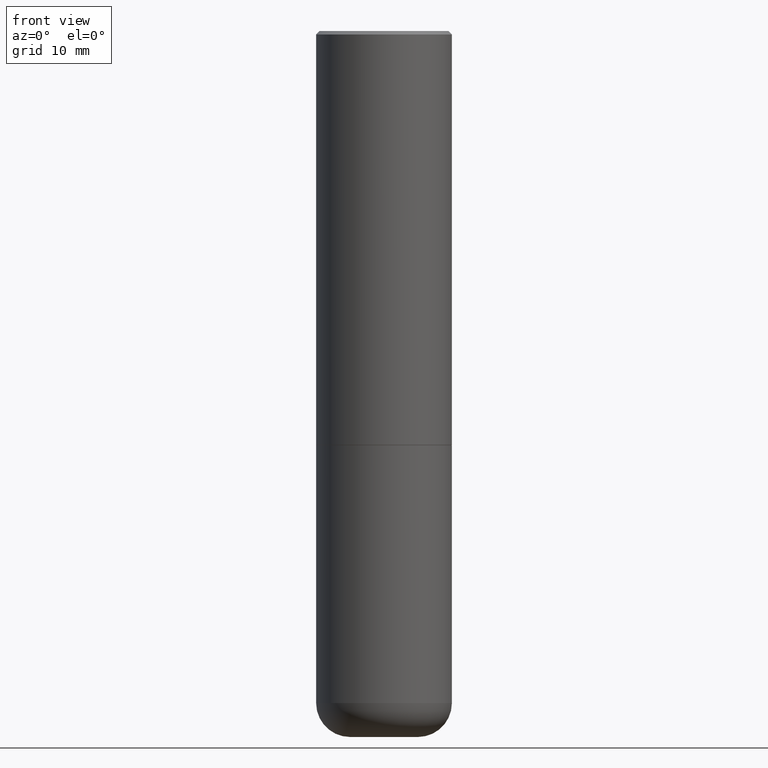
[diagram: clean part render]
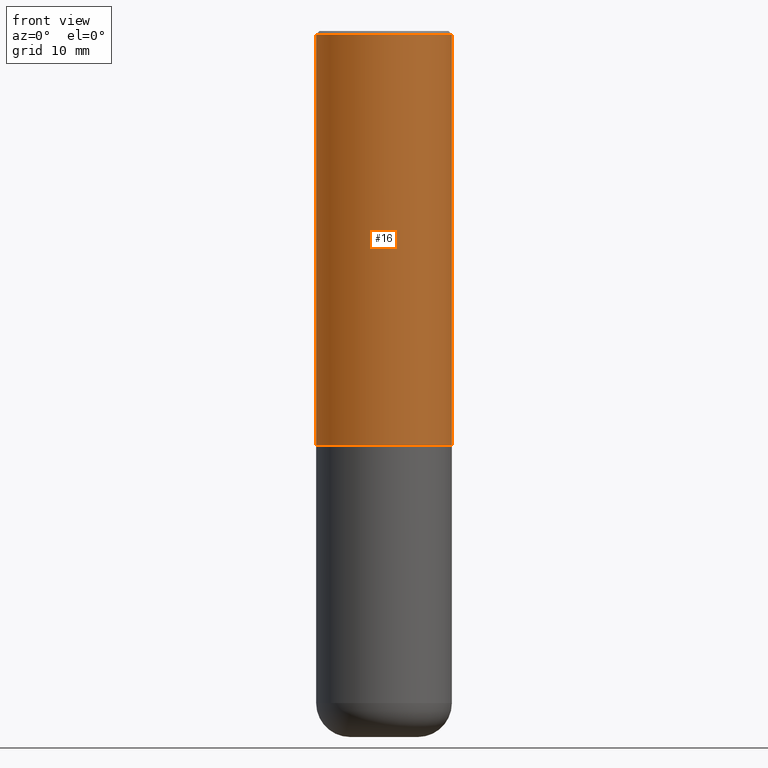
[diagram: same view with one face highlighted and labeled with its STEP entity id]
A machine part, front view. The second image highlights one B-rep face of the part: STEP entity #16.
In plain terms, the highlighted cylindrical surface (partial cylindrical patch) has radius 10 mm, axis along (-0, 0, 1).
Its self-contained STEP definition (entity closure, byte-faithful):
#8 = VECTOR ( 'NONE', #408, 39.37007874015748143 ) ;
#10 = CARTESIAN_POINT ( 'NONE',  ( -0.3937000000000001609, 2.797406750687515575E-15, -1.936584745033357296E-29 ) ) ;
#16 = ADVANCED_FACE ( 'NONE', ( #260 ), #267, .T. ) ;
#61 = CARTESIAN_POINT ( 'NONE',  ( 4.890937612370294178E-31, -6.982962677686321191E-17, -0.02000000000000008715 ) ) ;
#63 = CARTESIAN_POINT ( 'NONE',  ( -0.3937000000000003830, -1.428333113714341032E-15, -2.400600000000000289 ) ) ;
#64 = EDGE_LOOP ( 'NONE', ( #270, #228, #157, #314 ) ) ;
#74 = VERTEX_POINT ( 'NONE', #63 ) ;
#89 = EDGE_CURVE ( 'NONE', #163, #231, #401, .T. ) ;
#91 = DIRECTION ( 'NONE',  ( 1.000000000000000000, -6.982962677686265922E-15, 0.000000000000000000 ) ) ;
#100 = DIRECTION ( 'NONE',  ( 1.000000000000000000, -6.982962677686265922E-15, 0.000000000000000000 ) ) ;
#116 = AXIS2_PLACEMENT_3D ( 'NONE', #61, #158, #100 ) ;
#137 = DIRECTION ( 'NONE',  ( -2.445468806185136597E-29, 3.491481338843145583E-15, 1.000000000000000000 ) ) ;
#140 = DIRECTION ( 'NONE',  ( 1.000000000000000000, -6.982962677686266711E-15, 4.876176775795935793E-29 ) ) ;
#141 = DIRECTION ( 'NONE',  ( -2.445468806185136597E-29, 3.491481338843145583E-15, 1.000000000000000000 ) ) ;
#147 = DIRECTION ( 'NONE',  ( -2.445468806185136877E-29, 3.491481338843145188E-15, 1.000000000000000000 ) ) ;
#151 = CARTESIAN_POINT ( 'NONE',  ( 0.3937000000000001609, -2.749192406205084400E-15, 1.919750796630860732E-29 ) ) ;
#157 = ORIENTED_EDGE ( 'NONE', *, *, #89, .T. ) ;
#158 = DIRECTION ( 'NONE',  ( -2.445468806185136597E-29, 3.491481338843145583E-15, 1.000000000000000000 ) ) ;
#163 = VERTEX_POINT ( 'NONE', #339 ) ;
#182 = VERTEX_POINT ( 'NONE', #266 ) ;
#206 = CIRCLE ( 'NONE', #309, 0.3937000000000002720 ) ;
#212 = CARTESIAN_POINT ( 'NONE',  ( 5.870592416128038746E-29, -8.381650102026855834E-15, -2.400600000000000289 ) ) ;
#228 = ORIENTED_EDGE ( 'NONE', *, *, #313, .T. ) ;
#231 = VERTEX_POINT ( 'NONE', #350 ) ;
#252 = EDGE_CURVE ( 'NONE', #74, #182, #297, .T. ) ;
#260 = FACE_OUTER_BOUND ( 'NONE', #64, .T. ) ;
#266 = CARTESIAN_POINT ( 'NONE',  ( -0.3937000000000000499, 2.679362779428219918E-15, -0.02000000000000008715 ) ) ;
#267 = CYLINDRICAL_SURFACE ( 'NONE', #285, 0.3937000000000001609 ) ;
#270 = ORIENTED_EDGE ( 'NONE', *, *, #252, .F. ) ;
#279 = CIRCLE ( 'NONE', #116, 0.3937000000000000499 ) ;
#285 = AXIS2_PLACEMENT_3D ( 'NONE', #300, #137, #140 ) ;
#297 = LINE ( 'NONE', #10, #405 ) ;
#300 = CARTESIAN_POINT ( 'NONE',  ( 0.000000000000000000, 0.000000000000000000, 0.000000000000000000 ) ) ;
#309 = AXIS2_PLACEMENT_3D ( 'NONE', #212, #141, #91 ) ;
#310 = EDGE_CURVE ( 'NONE', #182, #231, #279, .T. ) ;
#313 = EDGE_CURVE ( 'NONE', #74, #163, #206, .T. ) ;
#314 = ORIENTED_EDGE ( 'NONE', *, *, #310, .F. ) ;
#339 = CARTESIAN_POINT ( 'NONE',  ( 0.3937000000000002720, -1.113084250823194063E-14, -2.400600000000000289 ) ) ;
#350 = CARTESIAN_POINT ( 'NONE',  ( 0.3937000000000000499, -2.770807688499515734E-15, -0.02000000000000008715 ) ) ;
#401 = LINE ( 'NONE', #151, #8 ) ;
#405 = VECTOR ( 'NONE', #147, 39.37007874015748143 ) ;
#408 = DIRECTION ( 'NONE',  ( -2.445468806185136877E-29, 3.491481338843145188E-15, 1.000000000000000000 ) ) ;